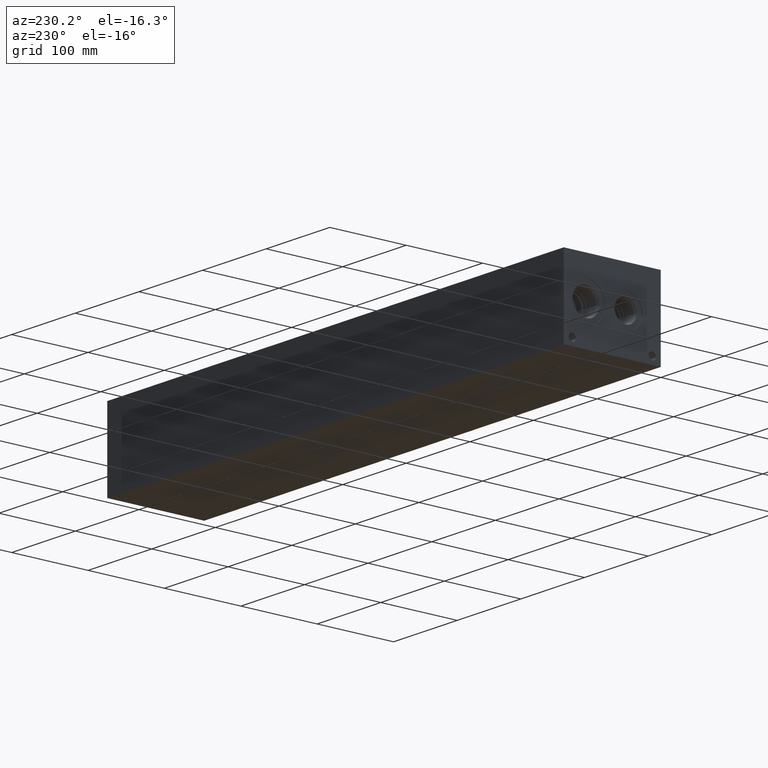
[diagram: clean part render]
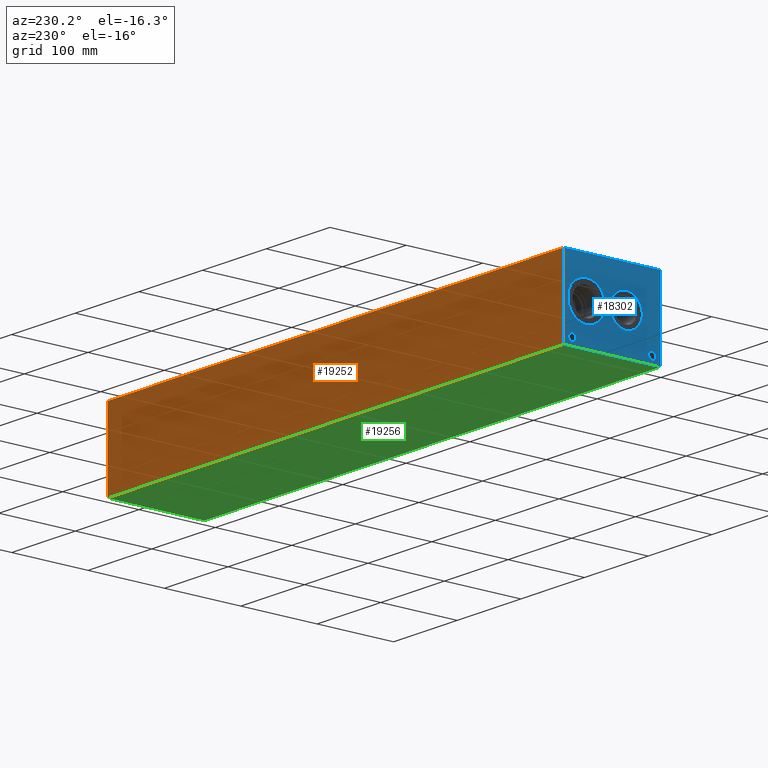
[diagram: same view with three faces highlighted in distinct colors, each labeled with its STEP entity id]
A machine part, auxiliary view with three faces highlighted in distinct colors.
Their STEP definitions:

[orange] entity #19252 — the highlighted planar face has unit normal (0, 1, 0).
#2791=FACE_OUTER_BOUND('',#3948,.T.);
#3948=EDGE_LOOP('',(#17010,#17011,#17012,#17013));
#4058=LINE('',#25356,#5670);
#4120=LINE('',#25634,#5732);
#5611=LINE('',#33549,#7223);
#5612=LINE('',#33550,#7224);
#5670=VECTOR('',#20773,10.);
#5732=VECTOR('',#20889,10.);
#7223=VECTOR('',#25090,10.);
#7224=VECTOR('',#25091,10.);
#7274=VERTEX_POINT('',#25353);
#7275=VERTEX_POINT('',#25355);
#7333=VERTEX_POINT('',#25627);
#7336=VERTEX_POINT('',#25632);
#9167=EDGE_CURVE('',#7274,#7275,#4058,.T.);
#9253=EDGE_CURVE('',#7333,#7336,#4120,.T.);
#11770=EDGE_CURVE('',#7274,#7333,#5611,.T.);
#11771=EDGE_CURVE('',#7275,#7336,#5612,.T.);
#17010=ORIENTED_EDGE('',*,*,#11770,.T.);
#17011=ORIENTED_EDGE('',*,*,#9253,.T.);
#17012=ORIENTED_EDGE('',*,*,#11771,.F.);
#17013=ORIENTED_EDGE('',*,*,#9167,.F.);
#17620=PLANE('',#20671);
#19252=ADVANCED_FACE('',(#2791),#17620,.T.);
#20671=AXIS2_PLACEMENT_3D('',#33548,#25088,#25089);
#20773=DIRECTION('',(0.,0.,1.));
#20889=DIRECTION('',(0.,0.,1.));
#25088=DIRECTION('center_axis',(0.,1.,0.));
#25089=DIRECTION('ref_axis',(-1.,0.,0.));
#25090=DIRECTION('',(-1.,0.,0.));
#25091=DIRECTION('',(-1.,0.,0.));
#25353=CARTESIAN_POINT('',(717.55,127.,0.));
#25355=CARTESIAN_POINT('',(717.55,127.,101.6));
#25356=CARTESIAN_POINT('',(717.55,127.,0.));
#25627=CARTESIAN_POINT('',(0.,127.,0.));
#25632=CARTESIAN_POINT('',(0.,127.,101.6));
#25634=CARTESIAN_POINT('',(0.,127.,0.));
#33548=CARTESIAN_POINT('Origin',(717.55,127.,0.));
#33549=CARTESIAN_POINT('',(717.55,127.,0.));
#33550=CARTESIAN_POINT('',(717.55,127.,101.6));

[blue] entity #18302 — the highlighted planar face has unit normal (-1, 0, 0).
#310=CIRCLE('',#19317,4.7625);
#311=CIRCLE('',#19318,4.7625);
#312=CIRCLE('',#19319,4.7625);
#313=CIRCLE('',#19320,4.7625);
#314=CIRCLE('',#19321,21.0185);
#315=CIRCLE('',#19322,21.0185);
#316=CIRCLE('',#19323,24.5618);
#317=CIRCLE('',#19324,24.5618);
#930=FACE_BOUND('',#2858,.T.);
#931=FACE_BOUND('',#2859,.T.);
#932=FACE_BOUND('',#2860,.T.);
#933=FACE_BOUND('',#2861,.T.);
#934=FACE_BOUND('',#2862,.T.);
#935=FACE_BOUND('',#2863,.T.);
#1143=B_SPLINE_CURVE_WITH_KNOTS('',2,(#25529,#25530,#25531,#25532),
 .UNSPECIFIED.,.F.,.F.,(3,1,3),(0.,1.,2.),.UNSPECIFIED.);
#1145=B_SPLINE_CURVE_WITH_KNOTS('',2,(#25550,#25551,#25552,#25553),
 .UNSPECIFIED.,.F.,.F.,(3,1,3),(0.,1.,2.),.UNSPECIFIED.);
#1147=B_SPLINE_CURVE_WITH_KNOTS('',2,(#25599,#25600,#25601,#25602),
 .UNSPECIFIED.,.F.,.F.,(3,1,3),(0.,1.,2.),.UNSPECIFIED.);
#1149=B_SPLINE_CURVE_WITH_KNOTS('',2,(#25617,#25618,#25619,#25620),
 .UNSPECIFIED.,.F.,.F.,(3,1,3),(0.,1.,2.),.UNSPECIFIED.);
#1841=FACE_OUTER_BOUND('',#2857,.T.);
#2857=EDGE_LOOP('',(#12041,#12042,#12043,#12044));
#2858=EDGE_LOOP('',(#12045,#12046,#12047,#12048,#12049,#12050,#12051,#12052));
#2859=EDGE_LOOP('',(#12053,#12054));
#2860=EDGE_LOOP('',(#12055,#12056));
#2861=EDGE_LOOP('',(#12057,#12058));
#2862=EDGE_LOOP('',(#12059,#12060));
#2863=EDGE_LOOP('',(#12061,#12062,#12063,#12064,#12065,#12066,#12067,#12068,
#12069));
#4061=LINE('',#25379,#5673);
#4065=LINE('',#25387,#5677);
#4068=LINE('',#25393,#5680);
#4071=LINE('',#25399,#5683);
#4074=LINE('',#25405,#5686);
#4077=LINE('',#25411,#5689);
#4080=LINE('',#25417,#5692);
#4083=LINE('',#25422,#5695);
#4101=LINE('',#25562,#5713);
#4104=LINE('',#25568,#5716);
#4107=LINE('',#25574,#5719);
#4110=LINE('',#25580,#5722);
#4113=LINE('',#25586,#5725);
#4117=LINE('',#25629,#5729);
#4118=LINE('',#25631,#5730);
#4119=LINE('',#25633,#5731);
#4120=LINE('',#25634,#5732);
#5673=VECTOR('',#20794,10.);
#5677=VECTOR('',#20800,10.);
#5680=VECTOR('',#20805,10.);
#5683=VECTOR('',#20810,10.);
#5686=VECTOR('',#20815,10.);
#5689=VECTOR('',#20820,10.);
#5692=VECTOR('',#20825,10.);
#5695=VECTOR('',#20830,10.);
#5713=VECTOR('',#20858,10.);
#5716=VECTOR('',#20863,10.);
#5719=VECTOR('',#20868,10.);
#5722=VECTOR('',#20873,10.);
#5725=VECTOR('',#20878,10.);
#5729=VECTOR('',#20886,10.);
#5730=VECTOR('',#20887,10.);
#5731=VECTOR('',#20888,10.);
#5732=VECTOR('',#20889,10.);
#7285=VERTEX_POINT('',#25377);
#7286=VERTEX_POINT('',#25378);
#7289=VERTEX_POINT('',#25386);
#7291=VERTEX_POINT('',#25392);
#7293=VERTEX_POINT('',#25398);
#7295=VERTEX_POINT('',#25404);
#7297=VERTEX_POINT('',#25410);
#7299=VERTEX_POINT('',#25416);
#7315=VERTEX_POINT('',#25527);
#7316=VERTEX_POINT('',#25528);
#7319=VERTEX_POINT('',#25549);
#7321=VERTEX_POINT('',#25561);
#7323=VERTEX_POINT('',#25567);
#7325=VERTEX_POINT('',#25573);
#7327=VERTEX_POINT('',#25579);
#7329=VERTEX_POINT('',#25585);
#7331=VERTEX_POINT('',#25598);
#7333=VERTEX_POINT('',#25627);
#7334=VERTEX_POINT('',#25628);
#7335=VERTEX_POINT('',#25630);
#7336=VERTEX_POINT('',#25632);
#7337=VERTEX_POINT('',#25635);
#7338=VERTEX_POINT('',#25636);
#7339=VERTEX_POINT('',#25639);
#7340=VERTEX_POINT('',#25640);
#7341=VERTEX_POINT('',#25643);
#7342=VERTEX_POINT('',#25644);
#7343=VERTEX_POINT('',#25647);
#7344=VERTEX_POINT('',#25648);
#9178=EDGE_CURVE('',#7285,#7286,#4061,.T.);
#9182=EDGE_CURVE('',#7289,#7285,#4065,.T.);
#9185=EDGE_CURVE('',#7291,#7289,#4068,.T.);
#9188=EDGE_CURVE('',#7293,#7291,#4071,.T.);
#9191=EDGE_CURVE('',#7295,#7293,#4074,.T.);
#9194=EDGE_CURVE('',#7297,#7295,#4077,.T.);
#9197=EDGE_CURVE('',#7299,#7297,#4080,.T.);
#9200=EDGE_CURVE('',#7286,#7299,#4083,.T.);
#9223=EDGE_CURVE('',#7315,#7316,#1143,.T.);
#9227=EDGE_CURVE('',#7319,#7315,#1145,.T.);
#9230=EDGE_CURVE('',#7321,#7319,#4101,.T.);
#9233=EDGE_CURVE('',#7323,#7321,#4104,.T.);
#9236=EDGE_CURVE('',#7325,#7323,#4107,.T.);
#9239=EDGE_CURVE('',#7327,#7325,#4110,.T.);
#9242=EDGE_CURVE('',#7329,#7327,#4113,.T.);
#9245=EDGE_CURVE('',#7331,#7329,#1147,.T.);
#9248=EDGE_CURVE('',#7316,#7331,#1149,.T.);
#9250=EDGE_CURVE('',#7333,#7334,#4117,.T.);
#9251=EDGE_CURVE('',#7334,#7335,#4118,.T.);
#9252=EDGE_CURVE('',#7336,#7335,#4119,.T.);
#9253=EDGE_CURVE('',#7333,#7336,#4120,.T.);
#9254=EDGE_CURVE('',#7337,#7338,#310,.T.);
#9255=EDGE_CURVE('',#7338,#7337,#311,.T.);
#9256=EDGE_CURVE('',#7339,#7340,#312,.T.);
#9257=EDGE_CURVE('',#7340,#7339,#313,.T.);
#9258=EDGE_CURVE('',#7341,#7342,#314,.T.);
#9259=EDGE_CURVE('',#7342,#7341,#315,.T.);
#9260=EDGE_CURVE('',#7343,#7344,#316,.T.);
#9261=EDGE_CURVE('',#7344,#7343,#317,.T.);
#12041=ORIENTED_EDGE('',*,*,#9250,.T.);
#12042=ORIENTED_EDGE('',*,*,#9251,.T.);
#12043=ORIENTED_EDGE('',*,*,#9252,.F.);
#12044=ORIENTED_EDGE('',*,*,#9253,.F.);
#12045=ORIENTED_EDGE('',*,*,#9178,.T.);
#12046=ORIENTED_EDGE('',*,*,#9200,.T.);
#12047=ORIENTED_EDGE('',*,*,#9197,.T.);
#12048=ORIENTED_EDGE('',*,*,#9194,.T.);
#12049=ORIENTED_EDGE('',*,*,#9191,.T.);
#12050=ORIENTED_EDGE('',*,*,#9188,.T.);
#12051=ORIENTED_EDGE('',*,*,#9185,.T.);
#12052=ORIENTED_EDGE('',*,*,#9182,.T.);
#12053=ORIENTED_EDGE('',*,*,#9254,.T.);
#12054=ORIENTED_EDGE('',*,*,#9255,.T.);
#12055=ORIENTED_EDGE('',*,*,#9256,.T.);
#12056=ORIENTED_EDGE('',*,*,#9257,.T.);
#12057=ORIENTED_EDGE('',*,*,#9258,.T.);
#12058=ORIENTED_EDGE('',*,*,#9259,.T.);
#12059=ORIENTED_EDGE('',*,*,#9260,.T.);
#12060=ORIENTED_EDGE('',*,*,#9261,.T.);
#12061=ORIENTED_EDGE('',*,*,#9223,.T.);
#12062=ORIENTED_EDGE('',*,*,#9248,.T.);
#12063=ORIENTED_EDGE('',*,*,#9245,.T.);
#12064=ORIENTED_EDGE('',*,*,#9242,.T.);
#12065=ORIENTED_EDGE('',*,*,#9239,.T.);
#12066=ORIENTED_EDGE('',*,*,#9236,.T.);
#12067=ORIENTED_EDGE('',*,*,#9233,.T.);
#12068=ORIENTED_EDGE('',*,*,#9230,.T.);
#12069=ORIENTED_EDGE('',*,*,#9227,.T.);
#17165=PLANE('',#19316);
#18302=ADVANCED_FACE('',(#1841,#930,#931,#932,#933,#934,#935),#17165,.T.);
#19316=AXIS2_PLACEMENT_3D('',#25626,#20884,#20885);
#19317=AXIS2_PLACEMENT_3D('',#25637,#20890,#20891);
#19318=AXIS2_PLACEMENT_3D('',#25638,#20892,#20893);
#19319=AXIS2_PLACEMENT_3D('',#25641,#20894,#20895);
#19320=AXIS2_PLACEMENT_3D('',#25642,#20896,#20897);
#19321=AXIS2_PLACEMENT_3D('',#25645,#20898,#20899);
#19322=AXIS2_PLACEMENT_3D('',#25646,#20900,#20901);
#19323=AXIS2_PLACEMENT_3D('',#25649,#20902,#20903);
#19324=AXIS2_PLACEMENT_3D('',#25650,#20904,#20905);
#20794=DIRECTION('',(0.,1.,0.));
#20800=DIRECTION('',(0.,3.17280044688052E-15,-1.));
#20805=DIRECTION('',(0.,1.,0.));
#20810=DIRECTION('',(0.,0.,-1.));
#20815=DIRECTION('',(0.,-1.,-3.47984565141734E-15));
#20820=DIRECTION('',(0.,0.,1.));
#20825=DIRECTION('',(0.,1.,8.33818088455555E-15));
#20830=DIRECTION('',(0.,-3.17280044688052E-15,1.));
#20858=DIRECTION('',(0.,-1.,0.));
#20863=DIRECTION('',(0.,-3.49676548440641E-15,1.));
#20868=DIRECTION('',(0.,1.,0.));
#20873=DIRECTION('',(0.,3.75218139805001E-15,-1.));
#20878=DIRECTION('',(0.,1.,0.));
#20884=DIRECTION('center_axis',(-1.,0.,0.));
#20885=DIRECTION('ref_axis',(0.,-1.,0.));
#20886=DIRECTION('',(0.,-1.,0.));
#20887=DIRECTION('',(0.,0.,1.));
#20888=DIRECTION('',(0.,-1.,0.));
#20889=DIRECTION('',(0.,0.,1.));
#20890=DIRECTION('center_axis',(1.,0.,0.));
#20891=DIRECTION('ref_axis',(0.,1.,0.));
#20892=DIRECTION('center_axis',(1.,0.,0.));
#20893=DIRECTION('ref_axis',(0.,1.,0.));
#20894=DIRECTION('center_axis',(1.,0.,0.));
#20895=DIRECTION('ref_axis',(0.,1.,0.));
#20896=DIRECTION('center_axis',(1.,0.,0.));
#20897=DIRECTION('ref_axis',(0.,1.,0.));
#20898=DIRECTION('center_axis',(1.,0.,0.));
#20899=DIRECTION('ref_axis',(0.,0.,1.));
#20900=DIRECTION('center_axis',(1.,0.,0.));
#20901=DIRECTION('ref_axis',(0.,0.,1.));
#20902=DIRECTION('center_axis',(1.,0.,0.));
#20903=DIRECTION('ref_axis',(0.,0.,1.));
#20904=DIRECTION('center_axis',(1.,0.,0.));
#20905=DIRECTION('ref_axis',(0.,0.,1.));
#25377=CARTESIAN_POINT('',(0.,112.124584728547,77.7875));
#25378=CARTESIAN_POINT('',(0.,112.968506920086,77.7875));
#25379=CARTESIAN_POINT('',(0.,119.562292364274,77.7875));
#25386=CARTESIAN_POINT('',(0.,112.124584728547,83.3862033194816));
#25387=CARTESIAN_POINT('',(0.,112.124584728547,41.6931016597407));
#25392=CARTESIAN_POINT('',(0.,109.994195781612,83.3862033194816));
#25393=CARTESIAN_POINT('',(0.,118.497097890806,83.3862033194816));
#25398=CARTESIAN_POINT('',(0.,109.994195781612,84.1374999046326));
#25399=CARTESIAN_POINT('',(0.,109.994195781612,42.0687499523163));
#25404=CARTESIAN_POINT('',(0.,115.098895867022,84.1374999046326));
#25405=CARTESIAN_POINT('',(0.,121.049447933511,84.1374999046326));
#25410=CARTESIAN_POINT('',(0.,115.098895867022,83.3862033194816));
#25411=CARTESIAN_POINT('',(0.,115.098895867022,41.6931016597408));
#25416=CARTESIAN_POINT('',(0.,112.968506920086,83.3862033194816));
#25417=CARTESIAN_POINT('',(0.,119.984253460043,83.3862033194816));
#25422=CARTESIAN_POINT('',(0.,112.968506920087,38.89375));
#25527=CARTESIAN_POINT('',(0.,19.1181827976406,83.7412681439707));
#25528=CARTESIAN_POINT('',(0.,18.361740345468,82.2232373726039));
#25529=CARTESIAN_POINT('Ctrl Pts',(0.,19.1181827976406,83.7412681439707));
#25530=CARTESIAN_POINT('Ctrl Pts',(0.,18.7631179731514,83.4994123939563));
#25531=CARTESIAN_POINT('Ctrl Pts',(0.,18.361740345468,82.7532616758269));
#25532=CARTESIAN_POINT('Ctrl Pts',(0.,18.361740345468,82.2232373726039));
#25549=CARTESIAN_POINT('',(0.,20.7802978456117,84.1374999046326));
#25550=CARTESIAN_POINT('Ctrl Pts',(0.,20.7802978456117,84.1374999046326));
#25551=CARTESIAN_POINT('Ctrl Pts',(0.,20.2142524732376,84.1374999046326));
#25552=CARTESIAN_POINT('Ctrl Pts',(0.,19.4217889519139,83.9522486918556));
#25553=CARTESIAN_POINT('Ctrl Pts',(0.,19.1181827976406,83.7412681439707));
#25561=CARTESIAN_POINT('',(0.,22.3755166223022,84.1374999046326));
#25562=CARTESIAN_POINT('',(0.,74.6877583111511,84.1374999046326));
#25567=CARTESIAN_POINT('',(0.,22.3755166223022,77.7875));
#25568=CARTESIAN_POINT('',(0.,22.3755166223023,38.8937499999998));
#25573=CARTESIAN_POINT('',(0.,21.5315944307627,77.7875));
#25574=CARTESIAN_POINT('',(0.,74.2657972153814,77.7875));
#25579=CARTESIAN_POINT('',(0.,21.5315944307627,80.1545988299279));
#25580=CARTESIAN_POINT('',(0.,21.5315944307629,40.0772994149637));
#25585=CARTESIAN_POINT('',(0.,20.8163189147628,80.1545988299279));
#25586=CARTESIAN_POINT('',(0.,73.9081594573814,80.1545988299279));
#25598=CARTESIAN_POINT('',(0.,18.9174939837989,80.8132698086904));
#25599=CARTESIAN_POINT('Ctrl Pts',(0.,18.9174939837989,80.8132698086904));
#25600=CARTESIAN_POINT('Ctrl Pts',(0.,19.2468294731802,80.4890801863307));
#25601=CARTESIAN_POINT('Ctrl Pts',(0.,20.1370644679139,80.1545988299279));
#25602=CARTESIAN_POINT('Ctrl Pts',(0.,20.8163189147628,80.1545988299279));
#25617=CARTESIAN_POINT('Ctrl Pts',(0.,18.361740345468,82.2232373726039));
#25618=CARTESIAN_POINT('Ctrl Pts',(0.,18.361740345468,81.8115680108774));
#25619=CARTESIAN_POINT('Ctrl Pts',(0.,18.6550547656982,81.0705631597695));
#25620=CARTESIAN_POINT('Ctrl Pts',(0.,18.9174939837989,80.8132698086904));
#25626=CARTESIAN_POINT('Origin',(0.,127.,0.));
#25627=CARTESIAN_POINT('',(0.,127.,0.));
#25628=CARTESIAN_POINT('',(0.,0.,0.));
#25629=CARTESIAN_POINT('',(0.,127.,0.));
#25630=CARTESIAN_POINT('',(0.,0.,101.6));
#25631=CARTESIAN_POINT('',(0.,0.,0.));
#25632=CARTESIAN_POINT('',(0.,127.,101.6));
#25633=CARTESIAN_POINT('',(0.,127.,101.6));
#25634=CARTESIAN_POINT('',(0.,127.,0.));
#25635=CARTESIAN_POINT('',(0.,120.6373,9.52500000000001));
#25636=CARTESIAN_POINT('',(0.,111.1123,9.52500000000001));
#25637=CARTESIAN_POINT('Origin',(0.,115.8748,9.52500000000001));
#25638=CARTESIAN_POINT('Origin',(0.,115.8748,9.52500000000001));
#25639=CARTESIAN_POINT('',(0.,15.8877,9.52500000000001));
#25640=CARTESIAN_POINT('',(0.,6.3627,9.52500000000001));
#25641=CARTESIAN_POINT('Origin',(0.,11.1252,9.52500000000001));
#25642=CARTESIAN_POINT('Origin',(0.,11.1252,9.52500000000001));
#25643=CARTESIAN_POINT('',(0.,45.2882,71.8185));
#25644=CARTESIAN_POINT('',(0.,45.2882,29.7815));
#25645=CARTESIAN_POINT('Origin',(0.,45.2882,50.8));
#25646=CARTESIAN_POINT('Origin',(0.,45.2882,50.8));
#25647=CARTESIAN_POINT('',(0.,97.2566,75.3618));
#25648=CARTESIAN_POINT('',(6.93889390390723E-17,97.2566,26.2382));
#25649=CARTESIAN_POINT('Origin',(0.,97.2566,50.8));
#25650=CARTESIAN_POINT('Origin',(0.,97.2566,50.8));

[green] entity #19256 — the highlighted planar face has unit normal (0, 0, 1).
#2795=FACE_OUTER_BOUND('',#4000,.T.);
#4000=EDGE_LOOP('',(#17124,#17125,#17126,#17127));
#4057=LINE('',#25354,#5669);
#4117=LINE('',#25629,#5729);
#4414=LINE('',#27965,#6026);
#5611=LINE('',#33549,#7223);
#5669=VECTOR('',#20772,10.);
#5729=VECTOR('',#20886,10.);
#6026=VECTOR('',#21349,10.);
#7223=VECTOR('',#25090,10.);
#7273=VERTEX_POINT('',#25352);
#7274=VERTEX_POINT('',#25353);
#7333=VERTEX_POINT('',#25627);
#7334=VERTEX_POINT('',#25628);
#9166=EDGE_CURVE('',#7273,#7274,#4057,.T.);
#9250=EDGE_CURVE('',#7333,#7334,#4117,.T.);
#9757=EDGE_CURVE('',#7334,#7273,#4414,.T.);
#11770=EDGE_CURVE('',#7274,#7333,#5611,.T.);
#17124=ORIENTED_EDGE('',*,*,#9757,.F.);
#17125=ORIENTED_EDGE('',*,*,#9250,.F.);
#17126=ORIENTED_EDGE('',*,*,#11770,.F.);
#17127=ORIENTED_EDGE('',*,*,#9166,.F.);
#17624=PLANE('',#20675);
#19256=ADVANCED_FACE('',(#2795),#17624,.F.);
#20675=AXIS2_PLACEMENT_3D('',#33554,#25098,#25099);
#20772=DIRECTION('',(0.,1.,0.));
#20886=DIRECTION('',(0.,-1.,0.));
#21349=DIRECTION('',(1.,0.,0.));
#25090=DIRECTION('',(-1.,0.,0.));
#25098=DIRECTION('center_axis',(0.,0.,1.));
#25099=DIRECTION('ref_axis',(1.,0.,0.));
#25352=CARTESIAN_POINT('',(717.55,0.,0.));
#25353=CARTESIAN_POINT('',(717.55,127.,0.));
#25354=CARTESIAN_POINT('',(717.55,0.,0.));
#25627=CARTESIAN_POINT('',(0.,127.,0.));
#25628=CARTESIAN_POINT('',(0.,0.,0.));
#25629=CARTESIAN_POINT('',(0.,127.,0.));
#27965=CARTESIAN_POINT('',(0.,0.,0.));
#33549=CARTESIAN_POINT('',(717.55,127.,0.));
#33554=CARTESIAN_POINT('Origin',(358.775,63.5,0.));